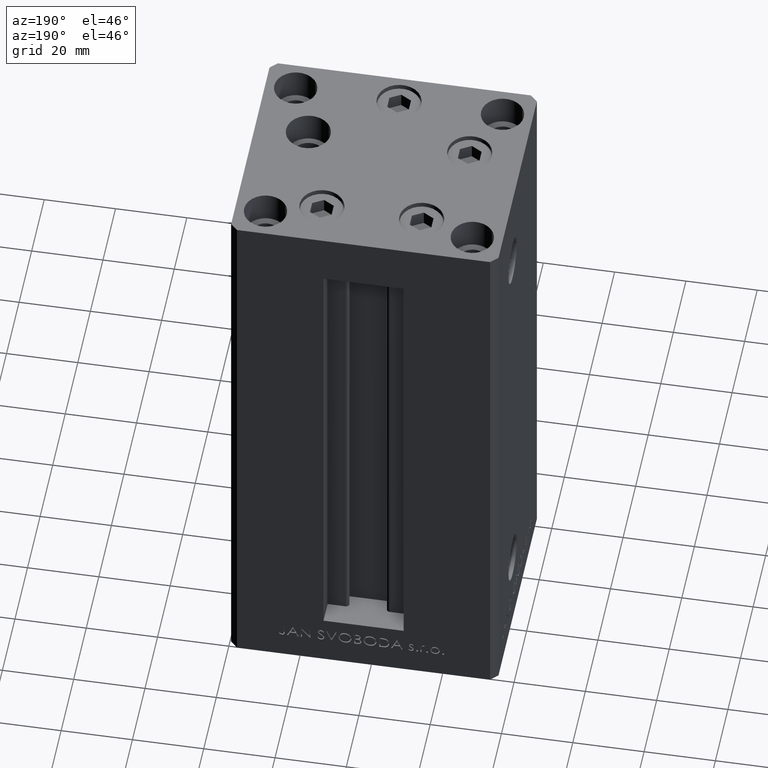
[diagram: clean part render]
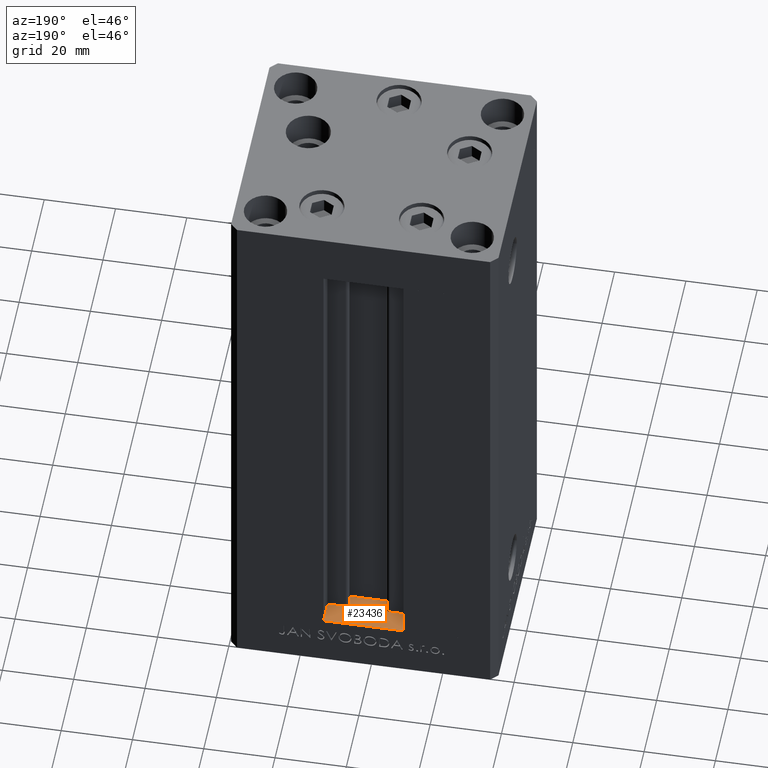
[diagram: same view with one face highlighted and labeled with its STEP entity id]
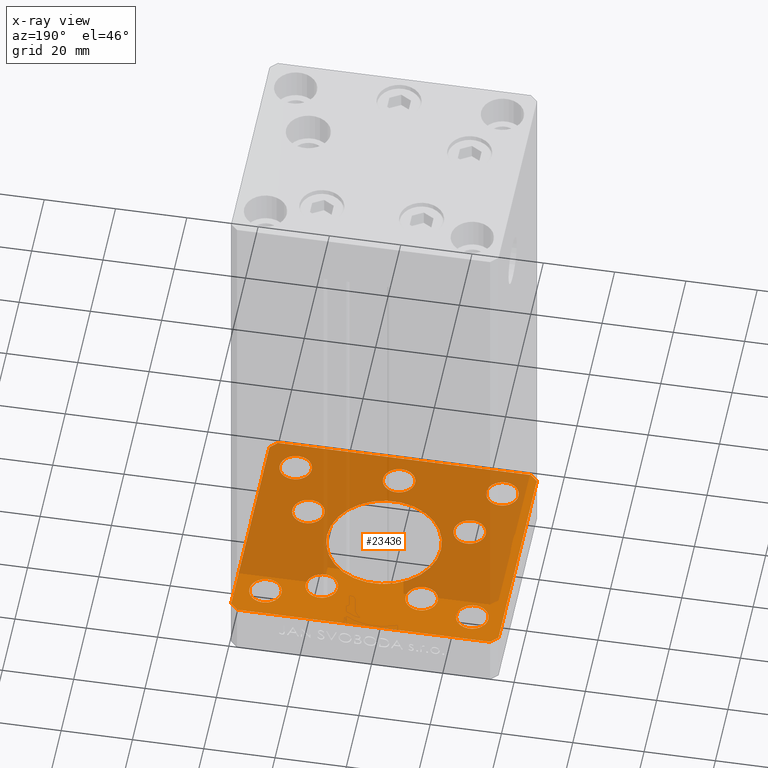
[diagram: x-ray of the same camera — body ghosted, the highlighted face saturated]
A machine part, auxiliary view. The second image highlights one B-rep face of the part: STEP entity #23436.
The next image is the same camera in x-ray: the body ghosted, the highlighted face saturated — about 70% of this face is hidden behind the body in this view.
In plain terms, the highlighted planar face has unit normal (0, 0, -1).
Its self-contained STEP definition (entity closure, byte-faithful):
#246 = LINE ( 'NONE', #15550, #41084 ) ;
#280 = DIRECTION ( 'NONE',  ( -0.000000000000000000, 0.000000000000000000, 1.000000000000000000 ) ) ;
#362 = EDGE_CURVE ( 'NONE', #20962, #28395, #46269, .T. ) ;
#396 = DIRECTION ( 'NONE',  ( 1.000000000000000000, 0.000000000000000000, 0.000000000000000000 ) ) ;
#587 = VERTEX_POINT ( 'NONE', #46171 ) ;
#597 = CARTESIAN_POINT ( 'NONE',  ( 18.49106857963324657, 19.50000000000000000, -15.00000000000000000 ) ) ;
#959 = EDGE_LOOP ( 'NONE', ( #9411, #13152 ) ) ;
#1052 = DIRECTION ( 'NONE',  ( 0.000000000000000000, 1.000000000000000000, 0.000000000000000000 ) ) ;
#1065 = DIRECTION ( 'NONE',  ( -0.000000000000000000, 0.000000000000000000, 1.000000000000000000 ) ) ;
#1546 = AXIS2_PLACEMENT_3D ( 'NONE', #7236, #22561, #37864 ) ;
#1551 = CARTESIAN_POINT ( 'NONE',  ( 37.50000000000000711, 30.50000000000001421, -15.00000000000000000 ) ) ;
#1767 = CARTESIAN_POINT ( 'NONE',  ( -29.00000000000000000, 24.00000000000000711, -15.00000000000000000 ) ) ;
#1874 = EDGE_LOOP ( 'NONE', ( #16275, #23840 ) ) ;
#1880 = DIRECTION ( 'NONE',  ( -0.000000000000000000, 0.000000000000000000, 1.000000000000000000 ) ) ;
#1972 = CARTESIAN_POINT ( 'NONE',  ( -35.50000000000000711, 32.49999999999997868, -15.00000000000000000 ) ) ;
#2131 = CARTESIAN_POINT ( 'NONE',  ( 0.000000000000000000, 0.000000000000000000, -15.00000000000000000 ) ) ;
#2137 = CARTESIAN_POINT ( 'NONE',  ( -35.50000000000000711, 32.49999999999997868, -15.00000000000000000 ) ) ;
#2176 = EDGE_CURVE ( 'NONE', #14653, #5827, #43825, .T. ) ;
#2376 = CIRCLE ( 'NONE', #1546, 4.500000000000000888 ) ;
#2381 = FACE_OUTER_BOUND ( 'NONE', #16600, .T. ) ;
#2417 = DIRECTION ( 'NONE',  ( -0.000000000000000000, 0.000000000000000000, 1.000000000000000000 ) ) ;
#2626 = FACE_BOUND ( 'NONE', #1874, .T. ) ;
#2854 = AXIS2_PLACEMENT_3D ( 'NONE', #16470, #47366, #35529 ) ;
#2876 = DIRECTION ( 'NONE',  ( 1.000000000000000000, 0.000000000000000000, 0.000000000000000000 ) ) ;
#2878 = ORIENTED_EDGE ( 'NONE', *, *, #10742, .F. ) ;
#2996 = DIRECTION ( 'NONE',  ( 1.000000000000000000, 0.000000000000000000, 0.000000000000000000 ) ) ;
#3354 = VERTEX_POINT ( 'NONE', #11392 ) ;
#3439 = CARTESIAN_POINT ( 'NONE',  ( -9.491068579633243019, 19.50000000000000000, -15.00000000000000000 ) ) ;
#3711 = ORIENTED_EDGE ( 'NONE', *, *, #31379, .F. ) ;
#3852 = ORIENTED_EDGE ( 'NONE', *, *, #18405, .T. ) ;
#4181 = CARTESIAN_POINT ( 'NONE',  ( -24.50000000000000000, -23.99999999999999645, -15.00000000000000000 ) ) ;
#4272 = AXIS2_PLACEMENT_3D ( 'NONE', #7616, #22945, #16384 ) ;
#4281 = CARTESIAN_POINT ( 'NONE',  ( 0.000000000000000000, -24.00000000000001066, -15.00000000000000000 ) ) ;
#4503 = EDGE_CURVE ( 'NONE', #18806, #36000, #43580, .T. ) ;
#4527 = AXIS2_PLACEMENT_3D ( 'NONE', #9949, #2417, #29289 ) ;
#4592 = CARTESIAN_POINT ( 'NONE',  ( 29.00000000000000355, -23.99999999999999645, -15.00000000000000000 ) ) ;
#4945 = VERTEX_POINT ( 'NONE', #22602 ) ;
#4982 = CARTESIAN_POINT ( 'NONE',  ( -37.50000000000000000, -30.50000000000004263, -15.00000000000000000 ) ) ;
#5026 = CARTESIAN_POINT ( 'NONE',  ( -33.50000000000000000, -23.99999999999999645, -15.00000000000000000 ) ) ;
#5045 = LINE ( 'NONE', #43723, #11739 ) ;
#5144 = CARTESIAN_POINT ( 'NONE',  ( -18.49106857963323947, 19.50000000000000000, -15.00000000000000000 ) ) ;
#5230 = DIRECTION ( 'NONE',  ( 0.000000000000000000, -0.000000000000000000, -1.000000000000000000 ) ) ;
#5404 = DIRECTION ( 'NONE',  ( 1.000000000000000000, 1.172770800660376149E-15, 0.000000000000000000 ) ) ;
#5425 = CARTESIAN_POINT ( 'NONE',  ( -33.50000000000000000, 24.00000000000000711, -15.00000000000000000 ) ) ;
#5750 = CARTESIAN_POINT ( 'NONE',  ( 18.12741699796953299, -8.000000000000000000, -15.00000000000000000 ) ) ;
#5827 = VERTEX_POINT ( 'NONE', #42455 ) ;
#5894 = DIRECTION ( 'NONE',  ( -0.000000000000000000, 0.000000000000000000, 1.000000000000000000 ) ) ;
#6448 = VERTEX_POINT ( 'NONE', #45062 ) ;
#6534 = AXIS2_PLACEMENT_3D ( 'NONE', #9015, #5230, #20811 ) ;
#6639 = FACE_BOUND ( 'NONE', #39173, .T. ) ;
#6879 = DIRECTION ( 'NONE',  ( 1.000000000000000000, 0.000000000000000000, 0.000000000000000000 ) ) ;
#6905 = AXIS2_PLACEMENT_3D ( 'NONE', #30952, #1065, #42749 ) ;
#7236 = CARTESIAN_POINT ( 'NONE',  ( -29.00000000000000000, -23.99999999999999645, -15.00000000000000000 ) ) ;
#7412 = VERTEX_POINT ( 'NONE', #46860 ) ;
#7613 = VERTEX_POINT ( 'NONE', #5026 ) ;
#7616 = CARTESIAN_POINT ( 'NONE',  ( 29.00000000000000355, -23.99999999999999645, -15.00000000000000000 ) ) ;
#7677 = AXIS2_PLACEMENT_3D ( 'NONE', #24984, #1880, #17950 ) ;
#7713 = CARTESIAN_POINT ( 'NONE',  ( -27.12741699796953299, -8.000000000000000000, -15.00000000000000000 ) ) ;
#8175 = ORIENTED_EDGE ( 'NONE', *, *, #45438, .T. ) ;
#8237 = VERTEX_POINT ( 'NONE', #3439 ) ;
#8251 = CIRCLE ( 'NONE', #21886, 16.00000000000000000 ) ;
#8620 = AXIS2_PLACEMENT_3D ( 'NONE', #33829, #22540, #18524 ) ;
#8790 = VECTOR ( 'NONE', #24403, 1000.000000000000000 ) ;
#9015 = CARTESIAN_POINT ( 'NONE',  ( 0.000000000000000000, 0.000000000000000000, -15.00000000000000000 ) ) ;
#9178 = CARTESIAN_POINT ( 'NONE',  ( -35.50000000000001421, -32.50000000000000711, -15.00000000000000000 ) ) ;
#9231 = CIRCLE ( 'NONE', #14857, 4.500000000000000888 ) ;
#9411 = ORIENTED_EDGE ( 'NONE', *, *, #17839, .F. ) ;
#9585 = LINE ( 'NONE', #1551, #8790 ) ;
#9680 = ORIENTED_EDGE ( 'NONE', *, *, #11434, .F. ) ;
#9893 = ORIENTED_EDGE ( 'NONE', *, *, #41538, .F. ) ;
#9897 = ORIENTED_EDGE ( 'NONE', *, *, #13274, .T. ) ;
#9949 = CARTESIAN_POINT ( 'NONE',  ( -29.00000000000000000, 24.00000000000000711, -15.00000000000000000 ) ) ;
#10164 = CIRCLE ( 'NONE', #4527, 4.500000000000000888 ) ;
#10388 = DIRECTION ( 'NONE',  ( 1.000000000000000000, 0.000000000000000000, 0.000000000000000000 ) ) ;
#10409 = FACE_BOUND ( 'NONE', #44979, .T. ) ;
#10678 = ORIENTED_EDGE ( 'NONE', *, *, #44379, .F. ) ;
#10724 = AXIS2_PLACEMENT_3D ( 'NONE', #4592, #34477, #34728 ) ;
#10742 = EDGE_CURVE ( 'NONE', #6448, #37809, #23757, .T. ) ;
#10902 = EDGE_CURVE ( 'NONE', #4945, #26588, #27771, .T. ) ;
#11391 = CARTESIAN_POINT ( 'NONE',  ( 24.50000000000000711, -23.99999999999999645, -15.00000000000000000 ) ) ;
#11392 = CARTESIAN_POINT ( 'NONE',  ( 37.50000000000000711, 30.50000000000001421, -15.00000000000000000 ) ) ;
#11434 = EDGE_CURVE ( 'NONE', #37809, #6448, #9231, .T. ) ;
#11739 = VECTOR ( 'NONE', #1052, 1000.000000000000000 ) ;
#11944 = ORIENTED_EDGE ( 'NONE', *, *, #43270, .F. ) ;
#12618 = VERTEX_POINT ( 'NONE', #5144 ) ;
#12967 = ORIENTED_EDGE ( 'NONE', *, *, #43325, .T. ) ;
#13152 = ORIENTED_EDGE ( 'NONE', *, *, #27215, .F. ) ;
#13259 = DIRECTION ( 'NONE',  ( 2.275047181608926165E-16, -1.000000000000000000, 0.000000000000000000 ) ) ;
#13274 = EDGE_CURVE ( 'NONE', #8237, #12618, #42139, .T. ) ;
#14151 = DIRECTION ( 'NONE',  ( 0.000000000000000000, -0.000000000000000000, -1.000000000000000000 ) ) ;
#14174 = FACE_BOUND ( 'NONE', #25424, .T. ) ;
#14551 = VERTEX_POINT ( 'NONE', #26133 ) ;
#14653 = VERTEX_POINT ( 'NONE', #1972 ) ;
#14669 = ORIENTED_EDGE ( 'NONE', *, *, #2176, .F. ) ;
#14857 = AXIS2_PLACEMENT_3D ( 'NONE', #40651, #22325, #17810 ) ;
#15233 = ORIENTED_EDGE ( 'NONE', *, *, #33578, .T. ) ;
#15508 = EDGE_CURVE ( 'NONE', #35318, #3354, #5045, .T. ) ;
#15528 = CIRCLE ( 'NONE', #10724, 4.499999999999997335 ) ;
#15550 = CARTESIAN_POINT ( 'NONE',  ( -37.50000000000001421, 30.50000000000000000, -15.00000000000000000 ) ) ;
#15702 = ORIENTED_EDGE ( 'NONE', *, *, #15920, .T. ) ;
#15920 = EDGE_CURVE ( 'NONE', #38418, #19475, #10164, .T. ) ;
#16275 = ORIENTED_EDGE ( 'NONE', *, *, #10902, .T. ) ;
#16374 = ORIENTED_EDGE ( 'NONE', *, *, #44566, .T. ) ;
#16384 = DIRECTION ( 'NONE',  ( 1.000000000000000000, 0.000000000000000000, 0.000000000000000000 ) ) ;
#16470 = CARTESIAN_POINT ( 'NONE',  ( -13.99106857963324124, 19.50000000000000000, -15.00000000000000000 ) ) ;
#16533 = CARTESIAN_POINT ( 'NONE',  ( -24.50000000000000000, 24.00000000000000711, -15.00000000000000000 ) ) ;
#16600 = EDGE_LOOP ( 'NONE', ( #10678, #9893, #14669, #49092, #46944, #34262, #29736, #19234 ) ) ;
#17179 = ORIENTED_EDGE ( 'NONE', *, *, #23968, .T. ) ;
#17747 = DIRECTION ( 'NONE',  ( 0.000000000000000000, -0.000000000000000000, -1.000000000000000000 ) ) ;
#17810 = DIRECTION ( 'NONE',  ( 1.000000000000000000, 0.000000000000000000, 0.000000000000000000 ) ) ;
#17839 = EDGE_CURVE ( 'NONE', #35573, #7613, #43898, .T. ) ;
#17930 = CARTESIAN_POINT ( 'NONE',  ( 29.00000000000000000, 24.00000000000000355, -15.00000000000000000 ) ) ;
#17950 = DIRECTION ( 'NONE',  ( 1.000000000000000000, 0.000000000000000000, 0.000000000000000000 ) ) ;
#18405 = EDGE_CURVE ( 'NONE', #12618, #8237, #48771, .T. ) ;
#18524 = DIRECTION ( 'NONE',  ( 1.000000000000000000, 0.000000000000000000, 0.000000000000000000 ) ) ;
#18761 = CARTESIAN_POINT ( 'NONE',  ( 13.99106857963324124, 19.50000000000000000, -15.00000000000000000 ) ) ;
#18806 = VERTEX_POINT ( 'NONE', #40191 ) ;
#18861 = AXIS2_PLACEMENT_3D ( 'NONE', #37384, #33124, #2996 ) ;
#18949 = CARTESIAN_POINT ( 'NONE',  ( -13.99106857963324124, 19.50000000000000000, -15.00000000000000000 ) ) ;
#19100 = AXIS2_PLACEMENT_3D ( 'NONE', #18949, #35228, #49606 ) ;
#19234 = ORIENTED_EDGE ( 'NONE', *, *, #4503, .F. ) ;
#19475 = VERTEX_POINT ( 'NONE', #16533 ) ;
#19837 = VECTOR ( 'NONE', #5404, 1000.000000000000000 ) ;
#19956 = EDGE_CURVE ( 'NONE', #14551, #14653, #32517, .T. ) ;
#19976 = EDGE_LOOP ( 'NONE', ( #9897, #3852 ) ) ;
#20811 = DIRECTION ( 'NONE',  ( 1.000000000000000000, 0.000000000000000000, 0.000000000000000000 ) ) ;
#20962 = VERTEX_POINT ( 'NONE', #41498 ) ;
#21245 = CARTESIAN_POINT ( 'NONE',  ( -16.00000000000000000, 1.959434878635765131E-15, -15.00000000000000000 ) ) ;
#21641 = AXIS2_PLACEMENT_3D ( 'NONE', #2131, #5894, #2876 ) ;
#21714 = FACE_BOUND ( 'NONE', #28248, .T. ) ;
#21860 = CARTESIAN_POINT ( 'NONE',  ( 35.50000000000001421, -32.49999999999992184, -15.00000000000000000 ) ) ;
#21886 = AXIS2_PLACEMENT_3D ( 'NONE', #45360, #17747, #29297 ) ;
#22175 = VECTOR ( 'NONE', #44328, 1000.000000000000000 ) ;
#22325 = DIRECTION ( 'NONE',  ( 0.000000000000000000, -0.000000000000000000, -1.000000000000000000 ) ) ;
#22540 = DIRECTION ( 'NONE',  ( 0.000000000000000000, -0.000000000000000000, -1.000000000000000000 ) ) ;
#22561 = DIRECTION ( 'NONE',  ( 0.000000000000000000, -0.000000000000000000, -1.000000000000000000 ) ) ;
#22602 = CARTESIAN_POINT ( 'NONE',  ( 27.12741699796953654, -8.000000000000000000, -15.00000000000000000 ) ) ;
#22758 = EDGE_CURVE ( 'NONE', #26588, #4945, #47267, .T. ) ;
#22945 = DIRECTION ( 'NONE',  ( -0.000000000000000000, 0.000000000000000000, 1.000000000000000000 ) ) ;
#23436 = ADVANCED_FACE ( 'NONE', ( #48102, #6639, #47852, #2626, #10409, #28751, #14174, #36764, #2381, #21714, #37014 ), #40786, .F. ) ;
#23453 = AXIS2_PLACEMENT_3D ( 'NONE', #33042, #48389, #28291 ) ;
#23525 = CIRCLE ( 'NONE', #4272, 4.499999999999997335 ) ;
#23540 = VERTEX_POINT ( 'NONE', #11391 ) ;
#23757 = CIRCLE ( 'NONE', #42996, 4.500000000000000888 ) ;
#23840 = ORIENTED_EDGE ( 'NONE', *, *, #22758, .T. ) ;
#23968 = EDGE_CURVE ( 'NONE', #19475, #38418, #48104, .T. ) ;
#24403 = DIRECTION ( 'NONE',  ( -0.7071067811865524577, 0.7071067811865426878, 0.000000000000000000 ) ) ;
#24605 = AXIS2_PLACEMENT_3D ( 'NONE', #4281, #280, #34167 ) ;
#24790 = EDGE_LOOP ( 'NONE', ( #16374, #8175 ) ) ;
#24984 = CARTESIAN_POINT ( 'NONE',  ( 0.000000000000000000, -24.00000000000001066, -15.00000000000000000 ) ) ;
#25085 = CARTESIAN_POINT ( 'NONE',  ( -4.500000000000001776, -24.00000000000001066, -15.00000000000000000 ) ) ;
#25424 = EDGE_LOOP ( 'NONE', ( #2878, #9680 ) ) ;
#25626 = AXIS2_PLACEMENT_3D ( 'NONE', #29733, #45064, #6879 ) ;
#26133 = CARTESIAN_POINT ( 'NONE',  ( 35.50000000000000000, 32.49999999999999289, -15.00000000000000000 ) ) ;
#26588 = VERTEX_POINT ( 'NONE', #5750 ) ;
#27215 = EDGE_CURVE ( 'NONE', #7613, #35573, #2376, .T. ) ;
#27586 = EDGE_CURVE ( 'NONE', #3354, #14551, #9585, .T. ) ;
#27771 = CIRCLE ( 'NONE', #6905, 4.500000000000000888 ) ;
#28248 = EDGE_LOOP ( 'NONE', ( #17179, #15702 ) ) ;
#28291 = DIRECTION ( 'NONE',  ( 1.000000000000000000, 0.000000000000000000, 0.000000000000000000 ) ) ;
#28395 = VERTEX_POINT ( 'NONE', #25085 ) ;
#28511 = CARTESIAN_POINT ( 'NONE',  ( 35.50000000000000000, 32.49999999999999289, -15.00000000000000000 ) ) ;
#28751 = FACE_BOUND ( 'NONE', #19976, .T. ) ;
#28764 = DIRECTION ( 'NONE',  ( -1.000000000000000000, -1.954618001100627573E-16, 0.000000000000000000 ) ) ;
#29289 = DIRECTION ( 'NONE',  ( 1.000000000000000000, 0.000000000000000000, 0.000000000000000000 ) ) ;
#29297 = DIRECTION ( 'NONE',  ( 1.000000000000000000, 0.000000000000000000, 0.000000000000000000 ) ) ;
#29301 = CIRCLE ( 'NONE', #18861, 4.499999999999997335 ) ;
#29487 = EDGE_LOOP ( 'NONE', ( #3711, #11944 ) ) ;
#29733 = CARTESIAN_POINT ( 'NONE',  ( 22.62741699796953299, -8.000000000000000000, -15.00000000000000000 ) ) ;
#29736 = ORIENTED_EDGE ( 'NONE', *, *, #32812, .F. ) ;
#30059 = DIRECTION ( 'NONE',  ( 1.000000000000000000, 0.000000000000000000, 0.000000000000000000 ) ) ;
#30120 = CIRCLE ( 'NONE', #7677, 4.500000000000001776 ) ;
#30339 = VECTOR ( 'NONE', #28764, 1000.000000000000000 ) ;
#30524 = VERTEX_POINT ( 'NONE', #43211 ) ;
#30685 = CIRCLE ( 'NONE', #33089, 4.500000000000005329 ) ;
#30952 = CARTESIAN_POINT ( 'NONE',  ( 22.62741699796953299, -8.000000000000000000, -15.00000000000000000 ) ) ;
#31262 = CARTESIAN_POINT ( 'NONE',  ( 13.99106857963324124, 19.50000000000000000, -15.00000000000000000 ) ) ;
#31379 = EDGE_CURVE ( 'NONE', #30524, #32740, #34583, .T. ) ;
#31998 = CARTESIAN_POINT ( 'NONE',  ( -37.50000000000000000, -30.50000000000004263, -15.00000000000000000 ) ) ;
#32243 = LINE ( 'NONE', #31998, #46797 ) ;
#32517 = LINE ( 'NONE', #28511, #30339 ) ;
#32740 = VERTEX_POINT ( 'NONE', #21245 ) ;
#32812 = EDGE_CURVE ( 'NONE', #36000, #35318, #49120, .T. ) ;
#33042 = CARTESIAN_POINT ( 'NONE',  ( -22.62741699796953299, -8.000000000000000000, -15.00000000000000000 ) ) ;
#33089 = AXIS2_PLACEMENT_3D ( 'NONE', #18761, #34552, #30059 ) ;
#33124 = DIRECTION ( 'NONE',  ( -0.000000000000000000, 0.000000000000000000, 1.000000000000000000 ) ) ;
#33578 = EDGE_CURVE ( 'NONE', #7412, #36440, #39458, .T. ) ;
#33683 = ORIENTED_EDGE ( 'NONE', *, *, #48635, .T. ) ;
#33829 = CARTESIAN_POINT ( 'NONE',  ( -29.00000000000000000, -23.99999999999999645, -15.00000000000000000 ) ) ;
#34167 = DIRECTION ( 'NONE',  ( 1.000000000000000000, 0.000000000000000000, 0.000000000000000000 ) ) ;
#34262 = ORIENTED_EDGE ( 'NONE', *, *, #15508, .F. ) ;
#34477 = DIRECTION ( 'NONE',  ( -0.000000000000000000, 0.000000000000000000, 1.000000000000000000 ) ) ;
#34552 = DIRECTION ( 'NONE',  ( -0.000000000000000000, 0.000000000000000000, 1.000000000000000000 ) ) ;
#34583 = CIRCLE ( 'NONE', #6534, 16.00000000000000000 ) ;
#34728 = DIRECTION ( 'NONE',  ( 1.000000000000000000, 0.000000000000000000, 0.000000000000000000 ) ) ;
#35176 = EDGE_LOOP ( 'NONE', ( #37192, #33683 ) ) ;
#35228 = DIRECTION ( 'NONE',  ( -0.000000000000000000, 0.000000000000000000, 1.000000000000000000 ) ) ;
#35318 = VERTEX_POINT ( 'NONE', #47930 ) ;
#35448 = EDGE_CURVE ( 'NONE', #45503, #48631, #30685, .T. ) ;
#35529 = DIRECTION ( 'NONE',  ( 1.000000000000000000, 0.000000000000000000, 0.000000000000000000 ) ) ;
#35573 = VERTEX_POINT ( 'NONE', #4181 ) ;
#36000 = VERTEX_POINT ( 'NONE', #21860 ) ;
#36314 = VERTEX_POINT ( 'NONE', #4982 ) ;
#36440 = VERTEX_POINT ( 'NONE', #7713 ) ;
#36764 = FACE_BOUND ( 'NONE', #959, .T. ) ;
#37014 = FACE_BOUND ( 'NONE', #24790, .T. ) ;
#37192 = ORIENTED_EDGE ( 'NONE', *, *, #362, .T. ) ;
#37384 = CARTESIAN_POINT ( 'NONE',  ( -22.62741699796953299, -8.000000000000000000, -15.00000000000000000 ) ) ;
#37809 = VERTEX_POINT ( 'NONE', #43716 ) ;
#37864 = DIRECTION ( 'NONE',  ( 1.000000000000000000, 0.000000000000000000, 0.000000000000000000 ) ) ;
#38138 = ORIENTED_EDGE ( 'NONE', *, *, #35448, .T. ) ;
#38418 = VERTEX_POINT ( 'NONE', #5425 ) ;
#39173 = EDGE_LOOP ( 'NONE', ( #15233, #44673 ) ) ;
#39458 = CIRCLE ( 'NONE', #23453, 4.499999999999997335 ) ;
#40191 = CARTESIAN_POINT ( 'NONE',  ( -35.50000000000001421, -32.50000000000000711, -15.00000000000000000 ) ) ;
#40651 = CARTESIAN_POINT ( 'NONE',  ( 29.00000000000000000, 24.00000000000000355, -15.00000000000000000 ) ) ;
#40681 = DIRECTION ( 'NONE',  ( 1.000000000000000000, 0.000000000000000000, 0.000000000000000000 ) ) ;
#40786 = PLANE ( 'NONE',  #21641 ) ;
#41084 = VECTOR ( 'NONE', #13259, 1000.000000000000000 ) ;
#41498 = CARTESIAN_POINT ( 'NONE',  ( 4.500000000000001776, -24.00000000000001066, -15.00000000000000000 ) ) ;
#41538 = EDGE_CURVE ( 'NONE', #5827, #36314, #246, .T. ) ;
#41808 = DIRECTION ( 'NONE',  ( 0.7071067811865463515, 0.7071067811865487940, 0.000000000000000000 ) ) ;
#41844 = VECTOR ( 'NONE', #41808, 1000.000000000000000 ) ;
#42139 = CIRCLE ( 'NONE', #2854, 4.499999999999999112 ) ;
#42455 = CARTESIAN_POINT ( 'NONE',  ( -37.50000000000001421, 30.50000000000000000, -15.00000000000000000 ) ) ;
#42749 = DIRECTION ( 'NONE',  ( 1.000000000000000000, 0.000000000000000000, 0.000000000000000000 ) ) ;
#42996 = AXIS2_PLACEMENT_3D ( 'NONE', #17930, #14151, #10388 ) ;
#43211 = CARTESIAN_POINT ( 'NONE',  ( 16.00000000000000000, 0.000000000000000000, -15.00000000000000000 ) ) ;
#43270 = EDGE_CURVE ( 'NONE', #32740, #30524, #8251, .T. ) ;
#43313 = DIRECTION ( 'NONE',  ( 0.7071067811865512365, -0.7071067811865439090, 0.000000000000000000 ) ) ;
#43325 = EDGE_CURVE ( 'NONE', #48631, #45503, #44364, .T. ) ;
#43457 = DIRECTION ( 'NONE',  ( -0.000000000000000000, 0.000000000000000000, 1.000000000000000000 ) ) ;
#43580 = LINE ( 'NONE', #9178, #19837 ) ;
#43716 = CARTESIAN_POINT ( 'NONE',  ( 24.50000000000000000, 24.00000000000000355, -15.00000000000000000 ) ) ;
#43723 = CARTESIAN_POINT ( 'NONE',  ( 37.50000000000000711, -30.49999999999992895, -15.00000000000000000 ) ) ;
#43825 = LINE ( 'NONE', #2137, #22175 ) ;
#43898 = CIRCLE ( 'NONE', #8620, 4.500000000000000888 ) ;
#44067 = CARTESIAN_POINT ( 'NONE',  ( 9.491068579633235913, 19.50000000000000000, -15.00000000000000000 ) ) ;
#44328 = DIRECTION ( 'NONE',  ( -0.7071067811865524577, -0.7071067811865426878, 0.000000000000000000 ) ) ;
#44364 = CIRCLE ( 'NONE', #45152, 4.500000000000005329 ) ;
#44379 = EDGE_CURVE ( 'NONE', #36314, #18806, #32243, .T. ) ;
#44566 = EDGE_CURVE ( 'NONE', #587, #23540, #23525, .T. ) ;
#44673 = ORIENTED_EDGE ( 'NONE', *, *, #47959, .T. ) ;
#44848 = CARTESIAN_POINT ( 'NONE',  ( 35.50000000000001421, -32.49999999999992184, -15.00000000000000000 ) ) ;
#44979 = EDGE_LOOP ( 'NONE', ( #38138, #12967 ) ) ;
#45062 = CARTESIAN_POINT ( 'NONE',  ( 33.50000000000000000, 24.00000000000000355, -15.00000000000000000 ) ) ;
#45064 = DIRECTION ( 'NONE',  ( -0.000000000000000000, 0.000000000000000000, 1.000000000000000000 ) ) ;
#45152 = AXIS2_PLACEMENT_3D ( 'NONE', #31262, #45856, #396 ) ;
#45360 = CARTESIAN_POINT ( 'NONE',  ( 0.000000000000000000, 0.000000000000000000, -15.00000000000000000 ) ) ;
#45438 = EDGE_CURVE ( 'NONE', #23540, #587, #15528, .T. ) ;
#45503 = VERTEX_POINT ( 'NONE', #597 ) ;
#45856 = DIRECTION ( 'NONE',  ( -0.000000000000000000, 0.000000000000000000, 1.000000000000000000 ) ) ;
#46171 = CARTESIAN_POINT ( 'NONE',  ( 33.50000000000000000, -23.99999999999999645, -15.00000000000000000 ) ) ;
#46269 = CIRCLE ( 'NONE', #24605, 4.500000000000001776 ) ;
#46797 = VECTOR ( 'NONE', #43313, 1000.000000000000000 ) ;
#46860 = CARTESIAN_POINT ( 'NONE',  ( -18.12741699796953654, -8.000000000000000000, -15.00000000000000000 ) ) ;
#46944 = ORIENTED_EDGE ( 'NONE', *, *, #27586, .F. ) ;
#47267 = CIRCLE ( 'NONE', #25626, 4.500000000000000888 ) ;
#47366 = DIRECTION ( 'NONE',  ( -0.000000000000000000, 0.000000000000000000, 1.000000000000000000 ) ) ;
#47852 = FACE_BOUND ( 'NONE', #35176, .T. ) ;
#47930 = CARTESIAN_POINT ( 'NONE',  ( 37.50000000000000711, -30.49999999999992895, -15.00000000000000000 ) ) ;
#47959 = EDGE_CURVE ( 'NONE', #36440, #7412, #29301, .T. ) ;
#48102 = FACE_BOUND ( 'NONE', #29487, .T. ) ;
#48104 = CIRCLE ( 'NONE', #48948, 4.500000000000000888 ) ;
#48389 = DIRECTION ( 'NONE',  ( -0.000000000000000000, 0.000000000000000000, 1.000000000000000000 ) ) ;
#48631 = VERTEX_POINT ( 'NONE', #44067 ) ;
#48635 = EDGE_CURVE ( 'NONE', #28395, #20962, #30120, .T. ) ;
#48771 = CIRCLE ( 'NONE', #19100, 4.499999999999999112 ) ;
#48948 = AXIS2_PLACEMENT_3D ( 'NONE', #1767, #43457, #40681 ) ;
#49092 = ORIENTED_EDGE ( 'NONE', *, *, #19956, .F. ) ;
#49120 = LINE ( 'NONE', #44848, #41844 ) ;
#49606 = DIRECTION ( 'NONE',  ( 1.000000000000000000, 0.000000000000000000, 0.000000000000000000 ) ) ;